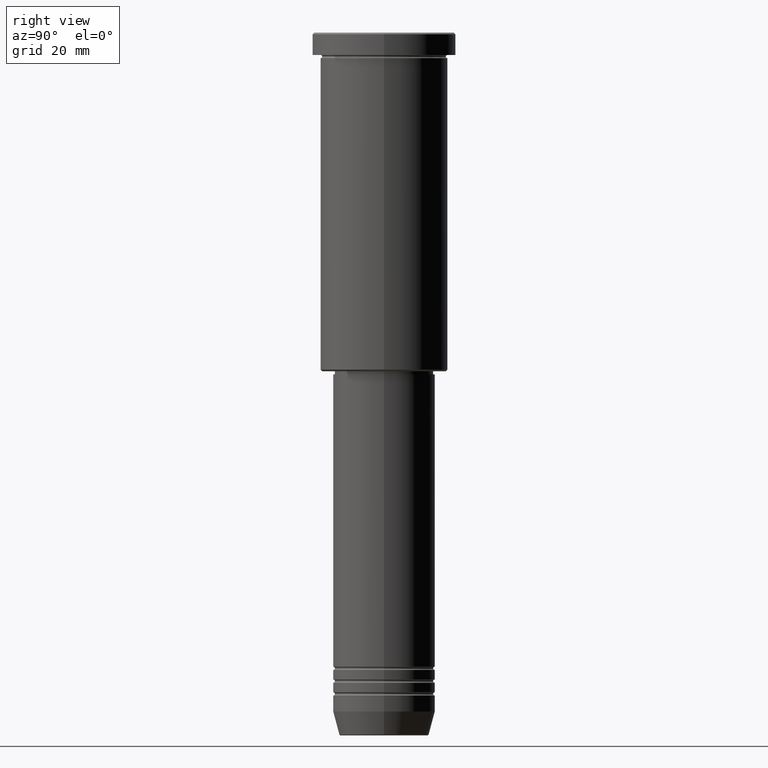
[diagram: clean part render]
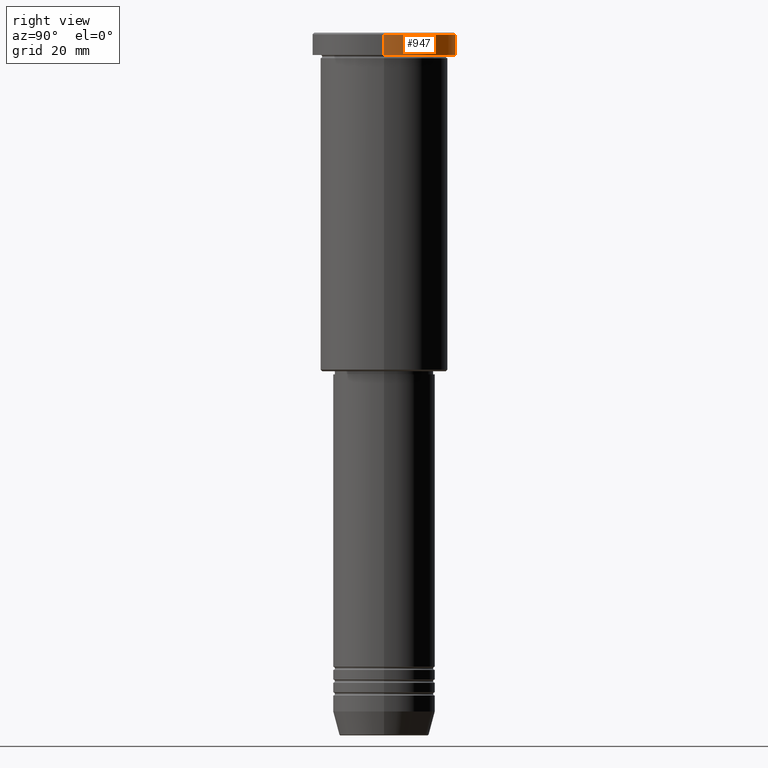
[diagram: same view with one face highlighted and labeled with its STEP entity id]
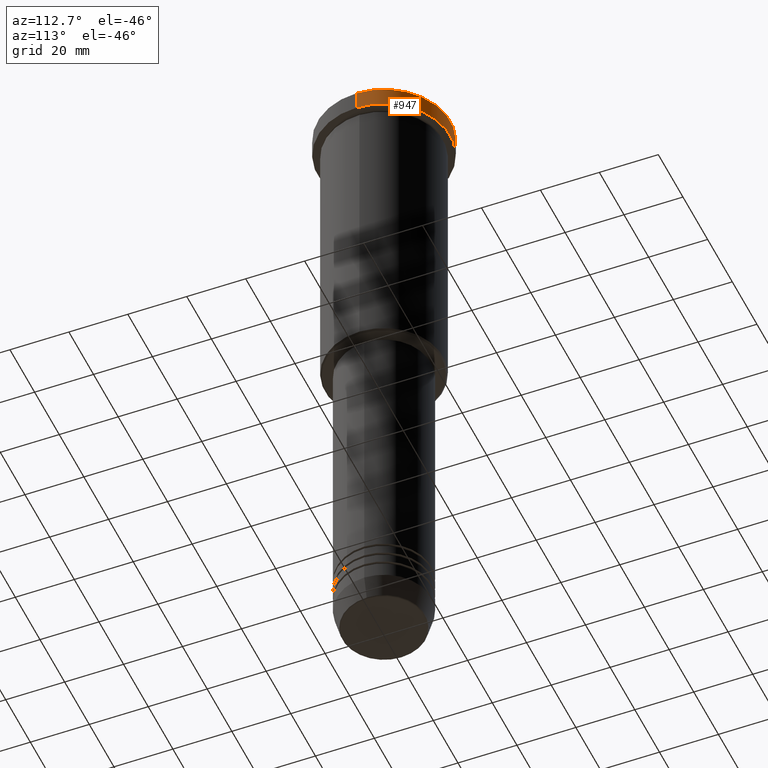
[diagram: same view with one face highlighted and labeled with its STEP entity id]
A machine part, right view. The second image highlights one B-rep face of the part: STEP entity #947.
A second angle (auxiliary view) of the same face is appended — the face is thin or edge-on in the first view.
In plain terms, the highlighted cylindrical surface (partial cylindrical patch) has radius 22.5 mm, axis along (-0, -0, 1).
Its self-contained STEP definition (entity closure, byte-faithful):
#5 = AXIS2_PLACEMENT_3D ( 'NONE', #875, #862, #775 ) ;
#13 = DIRECTION ( 'NONE',  ( 0.000000000000000000, 0.000000000000000000, -1.000000000000000000 ) ) ;
#19 = CARTESIAN_POINT ( 'NONE',  ( -22.50000000000000000, 2.755455298081544778E-15, -0.5000000000000213163 ) ) ;
#47 = CARTESIAN_POINT ( 'NONE',  ( 22.50000000000000000, 0.000000000000000000, 0.000000000000000000 ) ) ;
#94 = CIRCLE ( 'NONE', #5, 22.50000000000000000 ) ;
#149 = EDGE_LOOP ( 'NONE', ( #654, #606, #182, #530 ) ) ;
#174 = AXIS2_PLACEMENT_3D ( 'NONE', #842, #13, #466 ) ;
#182 = ORIENTED_EDGE ( 'NONE', *, *, #397, .T. ) ;
#196 = CARTESIAN_POINT ( 'NONE',  ( -22.50000000000000000, 2.755455298081544778E-15, 0.000000000000000000 ) ) ;
#216 = EDGE_CURVE ( 'NONE', #1142, #623, #94, .T. ) ;
#297 = AXIS2_PLACEMENT_3D ( 'NONE', #368, #641, #911 ) ;
#368 = CARTESIAN_POINT ( 'NONE',  ( 0.000000000000000000, 0.000000000000000000, 0.000000000000000000 ) ) ;
#397 = EDGE_CURVE ( 'NONE', #1087, #1179, #1035, .T. ) ;
#412 = EDGE_CURVE ( 'NONE', #623, #1087, #665, .T. ) ;
#424 = CARTESIAN_POINT ( 'NONE',  ( 22.50000000000000000, 0.000000000000000000, -6.999999999999995559 ) ) ;
#466 = DIRECTION ( 'NONE',  ( 1.000000000000000000, 0.000000000000000000, 0.000000000000000000 ) ) ;
#530 = ORIENTED_EDGE ( 'NONE', *, *, #1163, .F. ) ;
#545 = DIRECTION ( 'NONE',  ( -0.000000000000000000, -0.000000000000000000, 1.000000000000000000 ) ) ;
#606 = ORIENTED_EDGE ( 'NONE', *, *, #412, .T. ) ;
#623 = VERTEX_POINT ( 'NONE', #693 ) ;
#641 = DIRECTION ( 'NONE',  ( -0.000000000000000000, -0.000000000000000000, 1.000000000000000000 ) ) ;
#652 = FACE_OUTER_BOUND ( 'NONE', #149, .T. ) ;
#654 = ORIENTED_EDGE ( 'NONE', *, *, #216, .T. ) ;
#665 = LINE ( 'NONE', #196, #852 ) ;
#693 = CARTESIAN_POINT ( 'NONE',  ( -22.50000000000000000, 2.755455298081544778E-15, -6.999999999999995559 ) ) ;
#775 = DIRECTION ( 'NONE',  ( 1.000000000000000000, 0.000000000000000000, 0.000000000000000000 ) ) ;
#842 = CARTESIAN_POINT ( 'NONE',  ( 0.000000000000000000, 0.000000000000000000, -0.5000000000000213163 ) ) ;
#852 = VECTOR ( 'NONE', #545, 1000.000000000000000 ) ;
#862 = DIRECTION ( 'NONE',  ( -0.000000000000000000, -0.000000000000000000, 1.000000000000000000 ) ) ;
#875 = CARTESIAN_POINT ( 'NONE',  ( 0.000000000000000000, 0.000000000000000000, -6.999999999999995559 ) ) ;
#911 = DIRECTION ( 'NONE',  ( 1.000000000000000000, 0.000000000000000000, 0.000000000000000000 ) ) ;
#947 = ADVANCED_FACE ( 'NONE', ( #652 ), #1006, .T. ) ;
#1006 = CYLINDRICAL_SURFACE ( 'NONE', #297, 22.50000000000000000 ) ;
#1035 = CIRCLE ( 'NONE', #174, 22.50000000000000000 ) ;
#1080 = CARTESIAN_POINT ( 'NONE',  ( 22.50000000000000000, 0.000000000000000000, -0.5000000000000213163 ) ) ;
#1087 = VERTEX_POINT ( 'NONE', #19 ) ;
#1142 = VERTEX_POINT ( 'NONE', #424 ) ;
#1163 = EDGE_CURVE ( 'NONE', #1142, #1179, #1180, .T. ) ;
#1173 = VECTOR ( 'NONE', #1175, 1000.000000000000000 ) ;
#1175 = DIRECTION ( 'NONE',  ( -0.000000000000000000, -0.000000000000000000, 1.000000000000000000 ) ) ;
#1179 = VERTEX_POINT ( 'NONE', #1080 ) ;
#1180 = LINE ( 'NONE', #47, #1173 ) ;